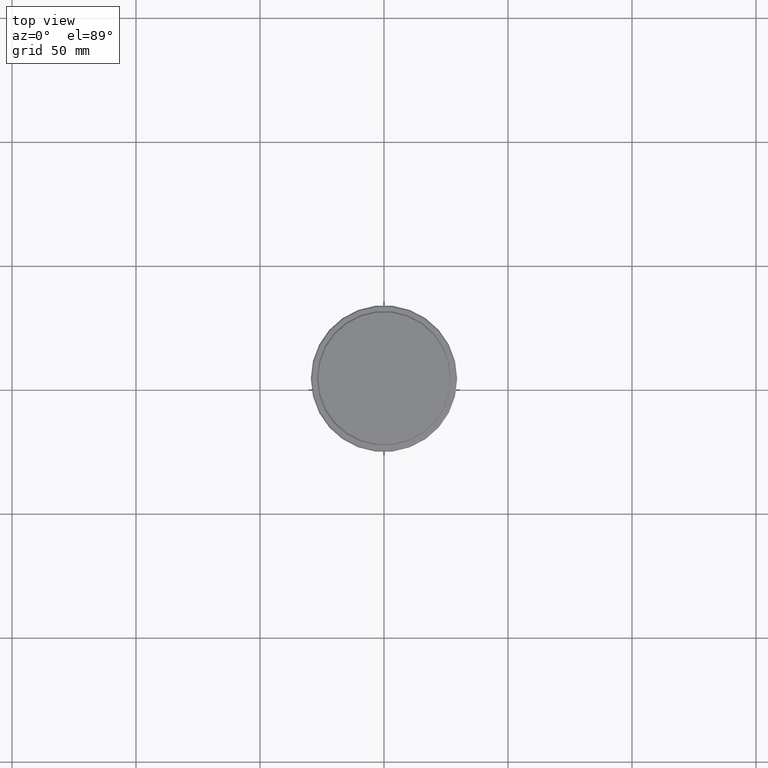
[diagram: clean part render]
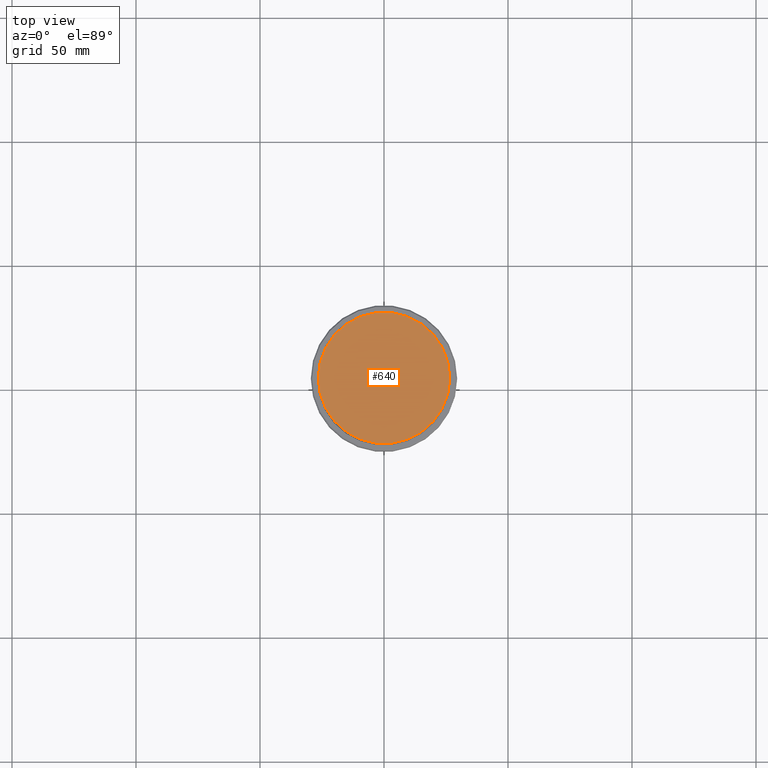
[diagram: same view with one face highlighted and labeled with its STEP entity id]
A machine part, top view. The second image highlights one B-rep face of the part: STEP entity #640.
In plain terms, the highlighted planar face has unit normal (0, -0, 1).
Its self-contained STEP definition (entity closure, byte-faithful):
#80 = DIRECTION ( 'NONE',  ( 0.000000000000000000, -0.000000000000000000, 1.000000000000000000 ) ) ;
#220 = DIRECTION ( 'NONE',  ( 1.000000000000000000, 0.000000000000000000, 0.000000000000000000 ) ) ;
#238 = DIRECTION ( 'NONE',  ( -0.000000000000000000, -0.000000000000000000, 1.000000000000000000 ) ) ;
#249 = CARTESIAN_POINT ( 'NONE',  ( -26.49999999999999645, 0.000000000000000000, 0.000000000000000000 ) ) ;
#585 = ORIENTED_EDGE ( 'NONE', *, *, #1307, .T. ) ;
#595 = CARTESIAN_POINT ( 'NONE',  ( 0.000000000000000000, 0.000000000000000000, 0.000000000000000000 ) ) ;
#614 = DIRECTION ( 'NONE',  ( 1.000000000000000000, 0.000000000000000000, 0.000000000000000000 ) ) ;
#640 = ADVANCED_FACE ( 'NONE', ( #1272 ), #718, .T. ) ;
#643 = CARTESIAN_POINT ( 'NONE',  ( 0.000000000000000000, 0.000000000000000000, 0.000000000000000000 ) ) ;
#651 = AXIS2_PLACEMENT_3D ( 'NONE', #1387, #80, #614 ) ;
#718 = PLANE ( 'NONE',  #651 ) ;
#789 = DIRECTION ( 'NONE',  ( 1.000000000000000000, 0.000000000000000000, 0.000000000000000000 ) ) ;
#813 = CIRCLE ( 'NONE', #1292, 26.49999999999999645 ) ;
#825 = EDGE_CURVE ( 'NONE', #958, #1038, #1132, .T. ) ;
#958 = VERTEX_POINT ( 'NONE', #249 ) ;
#1038 = VERTEX_POINT ( 'NONE', #1289 ) ;
#1080 = DIRECTION ( 'NONE',  ( -0.000000000000000000, -0.000000000000000000, 1.000000000000000000 ) ) ;
#1081 = EDGE_LOOP ( 'NONE', ( #1095, #585 ) ) ;
#1095 = ORIENTED_EDGE ( 'NONE', *, *, #825, .T. ) ;
#1132 = CIRCLE ( 'NONE', #1270, 26.49999999999999645 ) ;
#1270 = AXIS2_PLACEMENT_3D ( 'NONE', #643, #1080, #220 ) ;
#1272 = FACE_OUTER_BOUND ( 'NONE', #1081, .T. ) ;
#1289 = CARTESIAN_POINT ( 'NONE',  ( 26.49999999999999645, 3.275930187719169552E-15, 0.000000000000000000 ) ) ;
#1292 = AXIS2_PLACEMENT_3D ( 'NONE', #595, #238, #789 ) ;
#1307 = EDGE_CURVE ( 'NONE', #1038, #958, #813, .T. ) ;
#1387 = CARTESIAN_POINT ( 'NONE',  ( 0.000000000000000000, 0.000000000000000000, 0.000000000000000000 ) ) ;